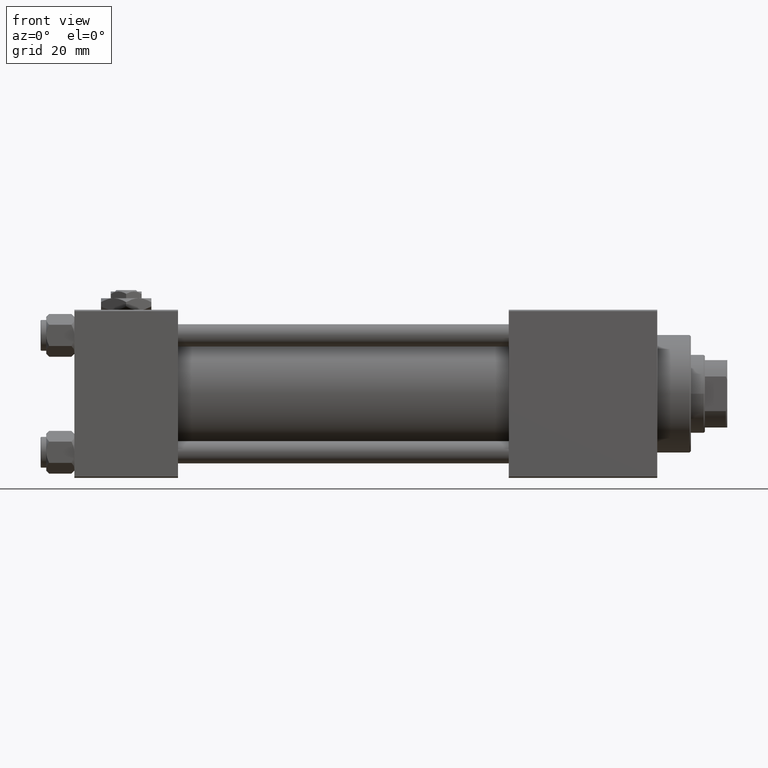
[diagram: clean part render]
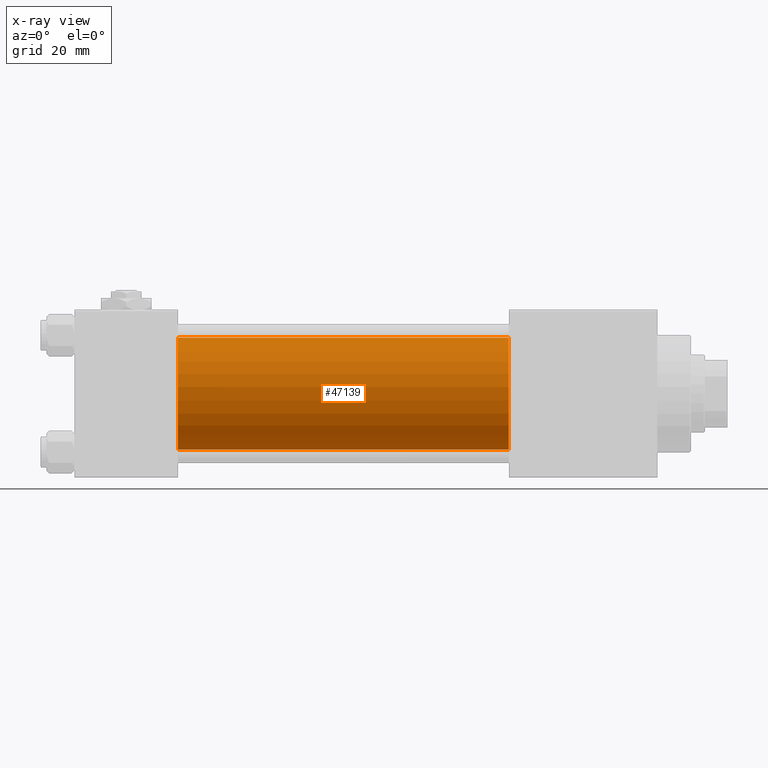
[diagram: x-ray — body ghosted, one internal face saturated and labeled with its STEP entity id]
A machine part, front view, then the same camera in x-ray: the body is ghosted and one INTERNAL B-rep face — a face not visible from any outside direction — is saturated and labeled: STEP entity #47139.
In plain terms, the highlighted cylindrical surface (partial cylindrical patch) has radius 20 mm, axis along (-1, -0, -0).
Its self-contained STEP definition (entity closure, byte-faithful):
#1775 = AXIS2_PLACEMENT_3D ( 'NONE', #24172, #23913, #40289 ) ;
#6315 = CARTESIAN_POINT ( 'NONE',  ( 37.00000000000000000, -2.602085213965210642E-15, 20.00000000000000000 ) ) ;
#6503 = VERTEX_POINT ( 'NONE', #6315 ) ;
#8071 = CYLINDRICAL_SURFACE ( 'NONE', #1775, 20.00000000000000000 ) ;
#9222 = DIRECTION ( 'NONE',  ( 1.000000000000000000, 0.000000000000000000, 0.000000000000000000 ) ) ;
#9248 = VERTEX_POINT ( 'NONE', #29380 ) ;
#9657 = EDGE_LOOP ( 'NONE', ( #49461, #34781, #21497, #49106 ) ) ;
#10018 = EDGE_CURVE ( 'NONE', #10914, #37709, #13954, .T. ) ;
#10914 = VERTEX_POINT ( 'NONE', #39545 ) ;
#11596 = VECTOR ( 'NONE', #13211, 1000.000000000000000 ) ;
#13211 = DIRECTION ( 'NONE',  ( -1.000000000000000000, -0.000000000000000000, -0.000000000000000000 ) ) ;
#13954 = CIRCLE ( 'NONE', #34222, 20.00000000000000000 ) ;
#17126 = DIRECTION ( 'NONE',  ( 0.000000000000000000, 0.000000000000000000, -1.000000000000000000 ) ) ;
#17163 = DIRECTION ( 'NONE',  ( 1.000000000000000000, 0.000000000000000000, 0.000000000000000000 ) ) ;
#18844 = EDGE_CURVE ( 'NONE', #37709, #9248, #29254, .T. ) ;
#21497 = ORIENTED_EDGE ( 'NONE', *, *, #39808, .F. ) ;
#23527 = CIRCLE ( 'NONE', #25185, 20.00000000000000000 ) ;
#23913 = DIRECTION ( 'NONE',  ( -1.000000000000000000, -0.000000000000000000, -0.000000000000000000 ) ) ;
#24172 = CARTESIAN_POINT ( 'NONE',  ( 155.0000000000000000, -2.602085213965210642E-15, 0.000000000000000000 ) ) ;
#25185 = AXIS2_PLACEMENT_3D ( 'NONE', #33304, #17163, #33044 ) ;
#25536 = DIRECTION ( 'NONE',  ( -1.000000000000000000, -0.000000000000000000, -0.000000000000000000 ) ) ;
#28665 = FACE_OUTER_BOUND ( 'NONE', #9657, .T. ) ;
#29254 = LINE ( 'NONE', #49589, #43665 ) ;
#29380 = CARTESIAN_POINT ( 'NONE',  ( 37.00000000000000000, -1.527916156705042519E-16, -20.00000000000000000 ) ) ;
#31626 = CARTESIAN_POINT ( 'NONE',  ( 155.0000000000000000, -1.527916156705042519E-16, -20.00000000000000000 ) ) ;
#33005 = CARTESIAN_POINT ( 'NONE',  ( 155.0000000000000000, -2.602085213965210642E-15, 0.000000000000000000 ) ) ;
#33044 = DIRECTION ( 'NONE',  ( 0.000000000000000000, 0.000000000000000000, -1.000000000000000000 ) ) ;
#33304 = CARTESIAN_POINT ( 'NONE',  ( 37.00000000000000000, -2.602085213965210642E-15, 0.000000000000000000 ) ) ;
#33305 = CARTESIAN_POINT ( 'NONE',  ( 155.0000000000000000, -2.602085213965210642E-15, 20.00000000000000000 ) ) ;
#34222 = AXIS2_PLACEMENT_3D ( 'NONE', #33005, #9222, #17126 ) ;
#34781 = ORIENTED_EDGE ( 'NONE', *, *, #18844, .T. ) ;
#36299 = EDGE_CURVE ( 'NONE', #10914, #6503, #45446, .T. ) ;
#37709 = VERTEX_POINT ( 'NONE', #31626 ) ;
#39545 = CARTESIAN_POINT ( 'NONE',  ( 155.0000000000000000, -2.602085213965210642E-15, 20.00000000000000000 ) ) ;
#39808 = EDGE_CURVE ( 'NONE', #6503, #9248, #23527, .T. ) ;
#40289 = DIRECTION ( 'NONE',  ( 0.000000000000000000, 0.000000000000000000, 1.000000000000000000 ) ) ;
#43665 = VECTOR ( 'NONE', #25536, 1000.000000000000000 ) ;
#45446 = LINE ( 'NONE', #33305, #11596 ) ;
#47139 = ADVANCED_FACE ( 'NONE', ( #28665 ), #8071, .F. ) ;
#49106 = ORIENTED_EDGE ( 'NONE', *, *, #36299, .F. ) ;
#49461 = ORIENTED_EDGE ( 'NONE', *, *, #10018, .T. ) ;
#49589 = CARTESIAN_POINT ( 'NONE',  ( 155.0000000000000000, -1.527916156705042519E-16, -20.00000000000000000 ) ) ;